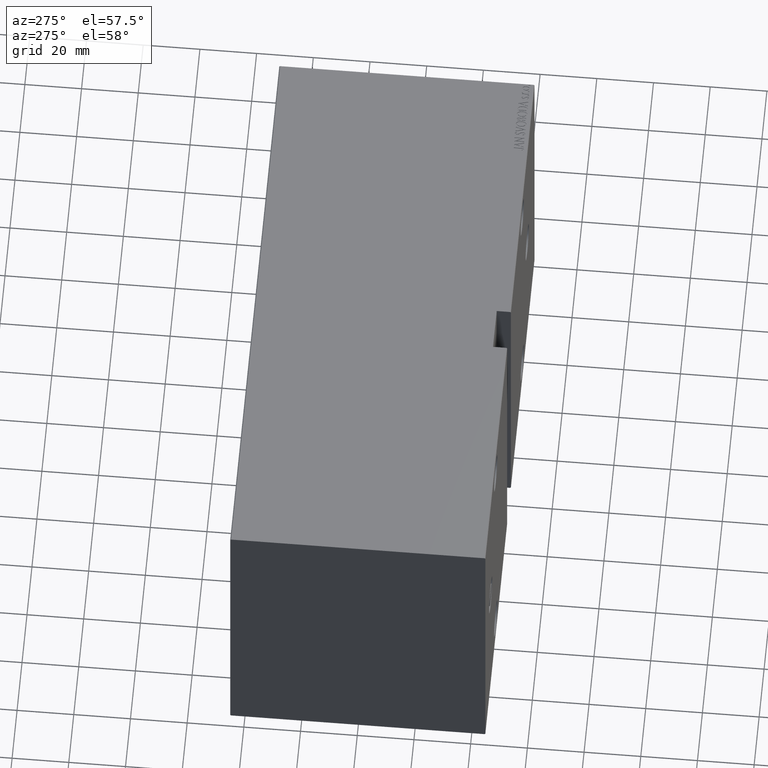
[diagram: clean part render]
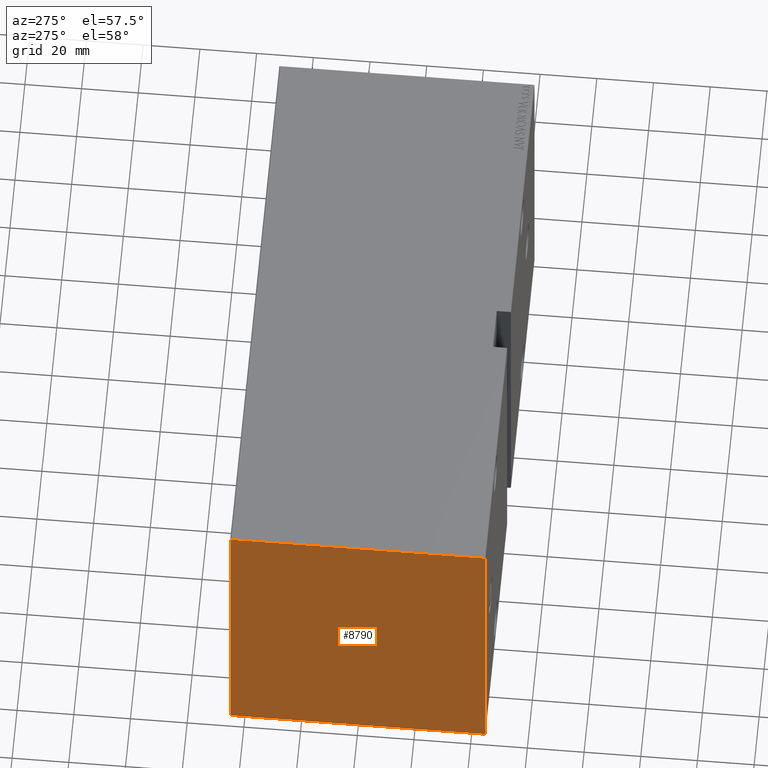
[diagram: same view with one face highlighted and labeled with its STEP entity id]
A machine part, auxiliary view. The second image highlights one B-rep face of the part: STEP entity #8790.
In plain terms, the highlighted planar face has unit normal (-1, 0, 0).
Its self-contained STEP definition (entity closure, byte-faithful):
#656 = CARTESIAN_POINT ( 'NONE',  ( 198.0000000000000000, 51.10000000000261622, 51.09999999999670450 ) ) ;
#2525 = VECTOR ( 'NONE', #19160, 1000.000000000000000 ) ;
#3397 = LINE ( 'NONE', #33310, #16825 ) ;
#3770 = CARTESIAN_POINT ( 'NONE',  ( 198.0000000000000000, -45.00000000000000000, 57.49999999999999289 ) ) ;
#4036 = CARTESIAN_POINT ( 'NONE',  ( 198.0000000000000000, -44.70000000000005969, -57.50000000000002132 ) ) ;
#4418 = VECTOR ( 'NONE', #19202, 1000.000000000000114 ) ;
#4784 = VERTEX_POINT ( 'NONE', #6215 ) ;
#5172 = ORIENTED_EDGE ( 'NONE', *, *, #5991, .T. ) ;
#5677 = DIRECTION ( 'NONE',  ( -0.000000000000000000, 0.7071067811865474617, 0.7071067811865474617 ) ) ;
#5967 = CARTESIAN_POINT ( 'NONE',  ( 198.0000000000000000, -51.10000000000005116, -51.10000000000005116 ) ) ;
#5991 = EDGE_CURVE ( 'NONE', #4784, #34620, #8738, .T. ) ;
#6215 = CARTESIAN_POINT ( 'NONE',  ( 198.0000000000000000, 44.70000000000004547, 57.50000000000001421 ) ) ;
#6408 = DIRECTION ( 'NONE',  ( 0.000000000000000000, 1.000000000000000000, 1.541976423090495140E-16 ) ) ;
#6651 = VERTEX_POINT ( 'NONE', #4036 ) ;
#6726 = CARTESIAN_POINT ( 'NONE',  ( 198.0000000000000000, -51.10000000000000853, 51.10000000000000853 ) ) ;
#6933 = DIRECTION ( 'NONE',  ( -0.000000000000000000, -0.7071067811865474617, -0.7071067811865474617 ) ) ;
#7357 = LINE ( 'NONE', #6726, #33341 ) ;
#7483 = DIRECTION ( 'NONE',  ( 1.000000000000000000, 0.000000000000000000, -0.000000000000000000 ) ) ;
#8124 = EDGE_CURVE ( 'NONE', #34620, #16077, #7357, .T. ) ;
#8140 = ORIENTED_EDGE ( 'NONE', *, *, #18735, .T. ) ;
#8195 = CARTESIAN_POINT ( 'NONE',  ( 198.0000000000000000, -44.69999999999997442, 57.49999999999999289 ) ) ;
#8738 = LINE ( 'NONE', #18280, #32040 ) ;
#8790 = ADVANCED_FACE ( 'NONE', ( #40668 ), #16220, .T. ) ;
#9227 = LINE ( 'NONE', #5967, #4418 ) ;
#9239 = VECTOR ( 'NONE', #42596, 1000.000000000000000 ) ;
#9337 = EDGE_CURVE ( 'NONE', #13256, #4784, #37090, .T. ) ;
#11567 = CARTESIAN_POINT ( 'NONE',  ( 198.0000000000000000, 44.70000000000004547, -57.50000000000000711 ) ) ;
#11787 = CARTESIAN_POINT ( 'NONE',  ( 198.0000000000000000, -45.00000000000000000, -57.20000000000005969 ) ) ;
#11973 = CARTESIAN_POINT ( 'NONE',  ( 198.0000000000000000, 51.10000000000005116, -51.10000000000005116 ) ) ;
#13256 = VERTEX_POINT ( 'NONE', #20703 ) ;
#13939 = VECTOR ( 'NONE', #23849, 1000.000000000000000 ) ;
#14540 = CARTESIAN_POINT ( 'NONE',  ( 198.0000000000000000, -45.00000000000000000, 57.20000000000000284 ) ) ;
#14629 = EDGE_CURVE ( 'NONE', #16077, #20216, #39786, .T. ) ;
#14896 = EDGE_CURVE ( 'NONE', #21993, #19054, #18260, .T. ) ;
#15666 = DIRECTION ( 'NONE',  ( 0.000000000000000000, -1.000000000000000000, -2.312964634635742957E-16 ) ) ;
#15850 = ORIENTED_EDGE ( 'NONE', *, *, #8124, .T. ) ;
#16077 = VERTEX_POINT ( 'NONE', #14540 ) ;
#16220 = PLANE ( 'NONE',  #18060 ) ;
#16825 = VECTOR ( 'NONE', #6408, 1000.000000000000000 ) ;
#17841 = ORIENTED_EDGE ( 'NONE', *, *, #20062, .T. ) ;
#18060 = AXIS2_PLACEMENT_3D ( 'NONE', #36406, #7483, #36619 ) ;
#18260 = LINE ( 'NONE', #11973, #21012 ) ;
#18280 = CARTESIAN_POINT ( 'NONE',  ( 198.0000000000000000, 45.00000000000001421, 57.50000000000001421 ) ) ;
#18727 = LINE ( 'NONE', #29141, #2525 ) ;
#18735 = EDGE_CURVE ( 'NONE', #6651, #21993, #3397, .T. ) ;
#19054 = VERTEX_POINT ( 'NONE', #37357 ) ;
#19160 = DIRECTION ( 'NONE',  ( 0.000000000000000000, 0.000000000000000000, 1.000000000000000000 ) ) ;
#19202 = DIRECTION ( 'NONE',  ( -0.000000000000000000, 0.7071067811865474617, -0.7071067811865474617 ) ) ;
#20062 = EDGE_CURVE ( 'NONE', #20216, #6651, #9227, .T. ) ;
#20216 = VERTEX_POINT ( 'NONE', #11787 ) ;
#20455 = ORIENTED_EDGE ( 'NONE', *, *, #28663, .T. ) ;
#20703 = CARTESIAN_POINT ( 'NONE',  ( 198.0000000000000000, 45.00000000000001421, 57.19999999999998863 ) ) ;
#21012 = VECTOR ( 'NONE', #5677, 1000.000000000000114 ) ;
#21993 = VERTEX_POINT ( 'NONE', #11567 ) ;
#23849 = DIRECTION ( 'NONE',  ( -0.000000000000000000, -0.7071067811865066055, 0.7071067811865884289 ) ) ;
#28452 = ORIENTED_EDGE ( 'NONE', *, *, #14629, .T. ) ;
#28663 = EDGE_CURVE ( 'NONE', #19054, #13256, #18727, .T. ) ;
#29141 = CARTESIAN_POINT ( 'NONE',  ( 198.0000000000000000, 45.00000000000001421, -57.50000000000000711 ) ) ;
#29963 = ORIENTED_EDGE ( 'NONE', *, *, #9337, .T. ) ;
#32040 = VECTOR ( 'NONE', #15666, 1000.000000000000000 ) ;
#33310 = CARTESIAN_POINT ( 'NONE',  ( 198.0000000000000000, -45.00000000000000000, -57.50000000000002132 ) ) ;
#33341 = VECTOR ( 'NONE', #6933, 1000.000000000000114 ) ;
#34620 = VERTEX_POINT ( 'NONE', #8195 ) ;
#35061 = EDGE_LOOP ( 'NONE', ( #8140, #36424, #20455, #29963, #5172, #15850, #28452, #17841 ) ) ;
#36406 = CARTESIAN_POINT ( 'NONE',  ( 198.0000000000000000, 0.000000000000000000, 0.000000000000000000 ) ) ;
#36424 = ORIENTED_EDGE ( 'NONE', *, *, #14896, .T. ) ;
#36619 = DIRECTION ( 'NONE',  ( -0.000000000000000000, 0.000000000000000000, -1.000000000000000000 ) ) ;
#37090 = LINE ( 'NONE', #656, #13939 ) ;
#37357 = CARTESIAN_POINT ( 'NONE',  ( 198.0000000000000000, 45.00000000000001421, -57.20000000000006679 ) ) ;
#39786 = LINE ( 'NONE', #3770, #9239 ) ;
#40668 = FACE_OUTER_BOUND ( 'NONE', #35061, .T. ) ;
#42596 = DIRECTION ( 'NONE',  ( 0.000000000000000000, 0.000000000000000000, -1.000000000000000000 ) ) ;